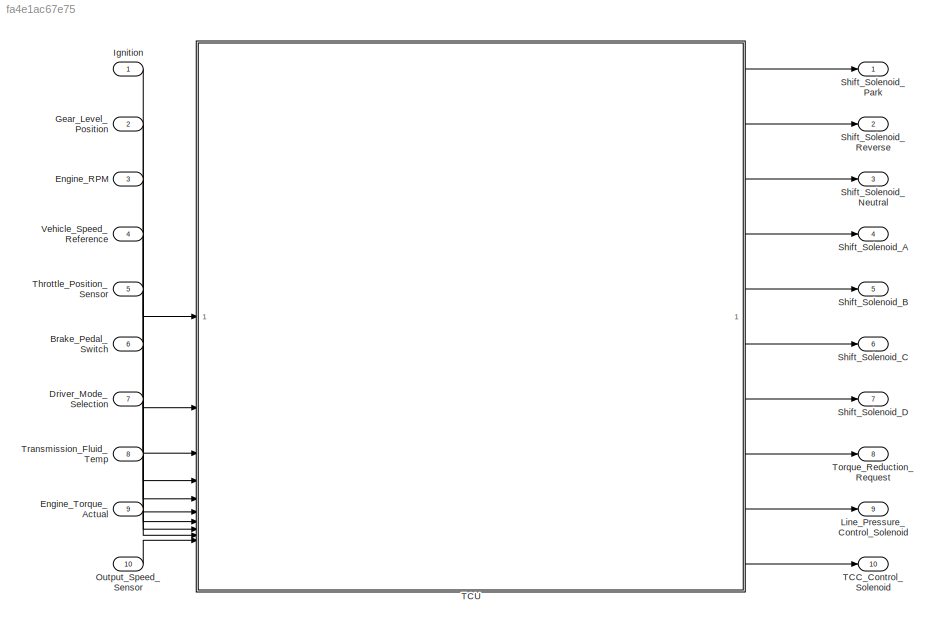
MODEL slx_fa4e1ac67e75
KIND model
CONFIG AbsTol = auto
CONFIG EnableMultiTasking = off
CONFIG FixedStep = auto
CONFIG MaxStep = auto
CONFIG MinStep = auto
CONFIG RelTol = 1e-3
CONFIG SampleTimeConstraint = Unconstrained
CONFIG SolverName = FixedStepDiscrete
CONFIG StartTime = 0.0
CONFIG StopTime = inf
BLOCK [Inport] Brake_Pedal_Switch
  Port = 6
BLOCK [Inport] Driver_Mode_Selection
  Port = 7
BLOCK [Inport] Engine_RPM
  Port = 3
BLOCK [Inport] Engine_Torque_Actual
  Port = 9
BLOCK [Inport] Gear_Level_Position
  Port = 2
BLOCK [Inport] Ignition
BLOCK [Outport] Line_Pressure_Control_Solenoid
  Port = 9
BLOCK [Inport] Output_Speed_Sensor
  Port = 10
BLOCK [Outport] Shift_Solenoid_A
  Port = 4
BLOCK [Outport] Shift_Solenoid_B
  Port = 5
BLOCK [Outport] Shift_Solenoid_C
  Port = 6
BLOCK [Outport] Shift_Solenoid_D
  Port = 7
BLOCK [Outport] Shift_Solenoid_Neutral
  Port = 3
BLOCK [Outport] Shift_Solenoid_Park
BLOCK [Outport] Shift_Solenoid_Reverse
  Port = 2
BLOCK [Outport] TCC_Control_Solenoid
  Port = 10
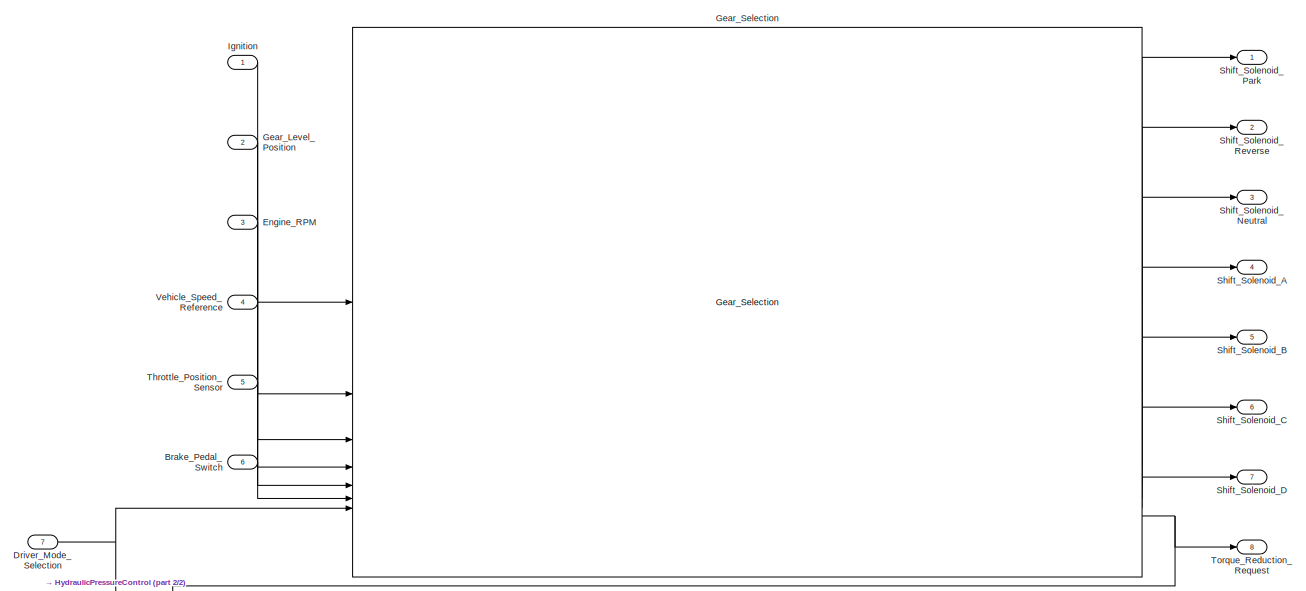
[diagram: TCU - part 1/2, full width, top band]
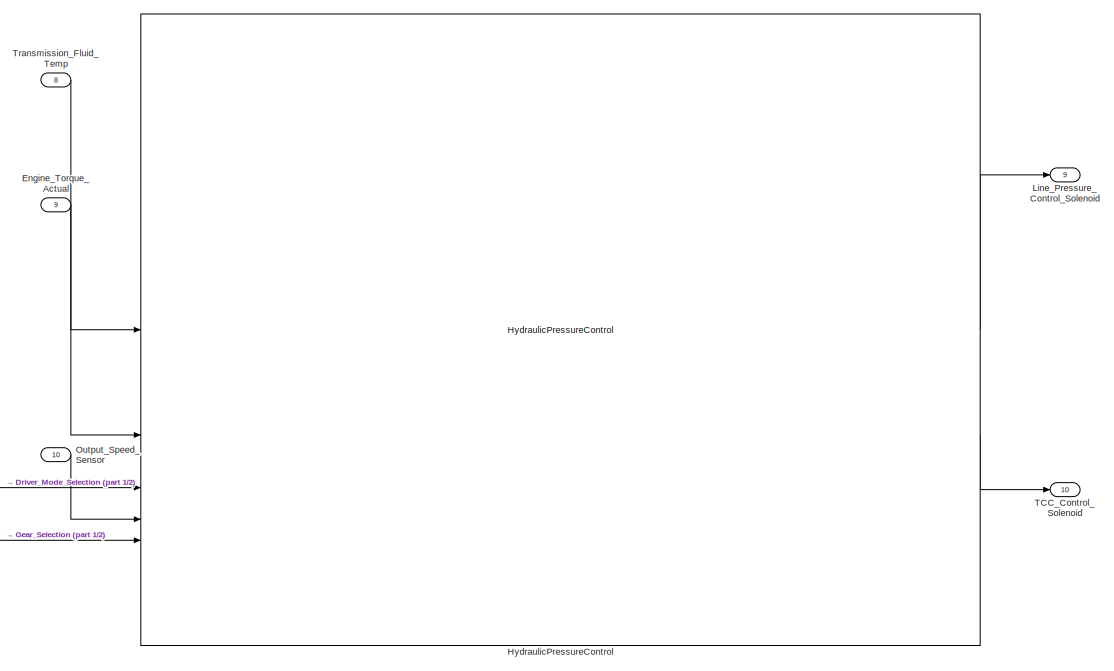
[diagram: TCU - part 2/2, full width, bottom band]
BLOCK [SubSystem] TCU
  RTWFcnNameOpts = Use subsystem name
  RTWFileNameOpts = Use subsystem name
  RTWSystemCode = Reusable function
  TreatAsAtomicUnit = on
BLOCK [Inport] TCU/Brake_Pedal_Switch
  OutDataTypeStr = boolean
  Port = 6
  PortDimensions = 1
  VarSizeSig = No
BLOCK [Inport] TCU/Driver_Mode_Selection
  OutDataTypeStr = double
  Port = 7
  PortDimensions = 1
  SignalType = real
  VarSizeSig = No
BLOCK [Inport] TCU/Engine_RPM
  OutDataTypeStr = double
  Port = 3
  PortDimensions = 1
  SignalType = real
  VarSizeSig = No
BLOCK [Inport] TCU/Engine_Torque_Actual
  OutDataTypeStr = double
  Port = 9
  PortDimensions = 1
  SignalType = real
  VarSizeSig = No
BLOCK [Inport] TCU/Gear_Level_Position
  OutDataTypeStr = double
  Port = 2
  PortDimensions = 1
  SignalType = real
  VarSizeSig = No
BLOCK [Reference] TCU/Gear_Selection  REF=TCU_GS/Gear_Selection
  SourceBlock = TCU_GS/Gear_Selection
  SourceType = SubSystem
BLOCK [Reference] TCU/HydraulicPressureControl  REF=TCU_HPC/HydraulicPressureControl
  SourceBlock = TCU_HPC/HydraulicPressureControl
  SourceType = SubSystem
BLOCK [Inport] TCU/Ignition
  OutDataTypeStr = double
  PortDimensions = 1
  VarSizeSig = No
BLOCK [Outport] TCU/Line_Pressure_Control_Solenoid
  OutDataTypeStr = double
  Port = 9
  PortDimensions = 1
  SignalType = real
  VarSizeSig = No
BLOCK [Inport] TCU/Output_Speed_Sensor
  OutDataTypeStr = double
  Port = 10
  PortDimensions = 1
  SignalType = real
  VarSizeSig = No
BLOCK [Outport] TCU/Shift_Solenoid_A
  OutDataTypeStr = boolean
  Port = 4
  PortDimensions = 1
  VarSizeSig = No
BLOCK [Outport] TCU/Shift_Solenoid_B
  OutDataTypeStr = boolean
  Port = 5
  PortDimensions = 1
  VarSizeSig = No
BLOCK [Outport] TCU/Shift_Solenoid_C
  OutDataTypeStr = boolean
  Port = 6
  PortDimensions = 1
  VarSizeSig = No
BLOCK [Outport] TCU/Shift_Solenoid_D
  OutDataTypeStr = boolean
  Port = 7
  PortDimensions = 1
  VarSizeSig = No
BLOCK [Outport] TCU/Shift_Solenoid_Neutral
  OutDataTypeStr = boolean
  Port = 3
  PortDimensions = 1
  VarSizeSig = No
BLOCK [Outport] TCU/Shift_Solenoid_Park
  OutDataTypeStr = boolean
  PortDimensions = 1
  VarSizeSig = No
BLOCK [Outport] TCU/Shift_Solenoid_Reverse
  OutDataTypeStr = boolean
  Port = 2
  PortDimensions = 1
  VarSizeSig = No
BLOCK [Outport] TCU/TCC_Control_Solenoid
  OutDataTypeStr = double
  Port = 10
  PortDimensions = 1
  SignalType = real
  VarSizeSig = No
BLOCK [Inport] TCU/Throttle_Position_Sensor
  OutDataTypeStr = double
  Port = 5
  PortDimensions = 1
  SignalType = real
  VarSizeSig = No
BLOCK [Outport] TCU/Torque_Reduction_Request
  OutDataTypeStr = double
  Port = 8
  PortDimensions = 1
  SignalType = real
  VarSizeSig = No
BLOCK [Inport] TCU/Transmission_Fluid_Temp
  OutDataTypeStr = double
  Port = 8
  PortDimensions = 1
  SignalType = real
  VarSizeSig = No
BLOCK [Inport] TCU/Vehicle_Speed_Reference
  OutDataTypeStr = double
  Port = 4
  PortDimensions = 1
  SignalType = real
  VarSizeSig = No
BLOCK [Inport] Throttle_Position_Sensor
  Port = 5
BLOCK [Outport] Torque_Reduction_Request
  Port = 8
BLOCK [Inport] Transmission_Fluid_Temp
  Port = 8
BLOCK [Inport] Vehicle_Speed_Reference
  Port = 4
LINE Brake_Pedal_Switch:1 -> TCU:6
LINE Driver_Mode_Selection:1 -> TCU:7
LINE Engine_RPM:1 -> TCU:3
LINE Engine_Torque_Actual:1 -> TCU:9
LINE Gear_Level_Position:1 -> TCU:2
LINE Ignition:1 -> TCU:1
LINE Output_Speed_Sensor:1 -> TCU:10
LINE TCU/Brake_Pedal_Switch:1 -> TCU/Gear_Selection:6
NET TCU/Driver_Mode_Selection:1 -> TCU/Gear_Selection:7, TCU/HydraulicPressureControl:3
LINE TCU/Engine_RPM:1 -> TCU/Gear_Selection:3
LINE TCU/Engine_Torque_Actual:1 -> TCU/HydraulicPressureControl:2
LINE TCU/Gear_Level_Position:1 -> TCU/Gear_Selection:2
LINE TCU/Gear_Selection:1 -> TCU/Shift_Solenoid_Park:1
LINE TCU/Gear_Selection:2 -> TCU/Shift_Solenoid_Reverse:1
LINE TCU/Gear_Selection:3 -> TCU/Shift_Solenoid_Neutral:1
LINE TCU/Gear_Selection:4 -> TCU/Shift_Solenoid_A:1
LINE TCU/Gear_Selection:5 -> TCU/Shift_Solenoid_B:1
LINE TCU/Gear_Selection:6 -> TCU/Shift_Solenoid_C:1
LINE TCU/Gear_Selection:7 -> TCU/Shift_Solenoid_D:1
NET TCU/Gear_Selection:8 -> TCU/HydraulicPressureControl:5, TCU/Torque_Reduction_Request:1
LINE TCU/HydraulicPressureControl:1 -> TCU/Line_Pressure_Control_Solenoid:1
LINE TCU/HydraulicPressureControl:2 -> TCU/TCC_Control_Solenoid:1
LINE TCU/Ignition:1 -> TCU/Gear_Selection:1
LINE TCU/Output_Speed_Sensor:1 -> TCU/HydraulicPressureControl:4
LINE TCU/Throttle_Position_Sensor:1 -> TCU/Gear_Selection:5
LINE TCU/Transmission_Fluid_Temp:1 -> TCU/HydraulicPressureControl:1
LINE TCU/Vehicle_Speed_Reference:1 -> TCU/Gear_Selection:4
LINE TCU:1 -> Shift_Solenoid_Park:1
LINE TCU:10 -> TCC_Control_Solenoid:1
LINE TCU:2 -> Shift_Solenoid_Reverse:1
LINE TCU:3 -> Shift_Solenoid_Neutral:1
LINE TCU:4 -> Shift_Solenoid_A:1
LINE TCU:5 -> Shift_Solenoid_B:1
LINE TCU:6 -> Shift_Solenoid_C:1
LINE TCU:7 -> Shift_Solenoid_D:1
LINE TCU:8 -> Torque_Reduction_Request:1
LINE TCU:9 -> Line_Pressure_Control_Solenoid:1
LINE Throttle_Position_Sensor:1 -> TCU:5
LINE Transmission_Fluid_Temp:1 -> TCU:8
LINE Vehicle_Speed_Reference:1 -> TCU:4
note: NET lines group one-source signal fan-out (src -> all destinations, sorted); 1:1 wires keep LINE
